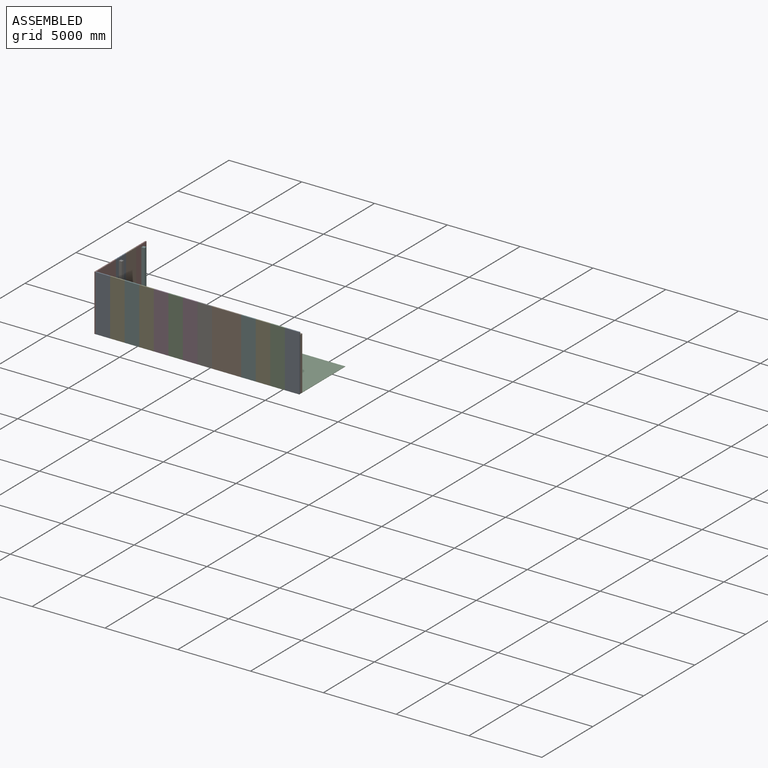
[diagram: assembled view]
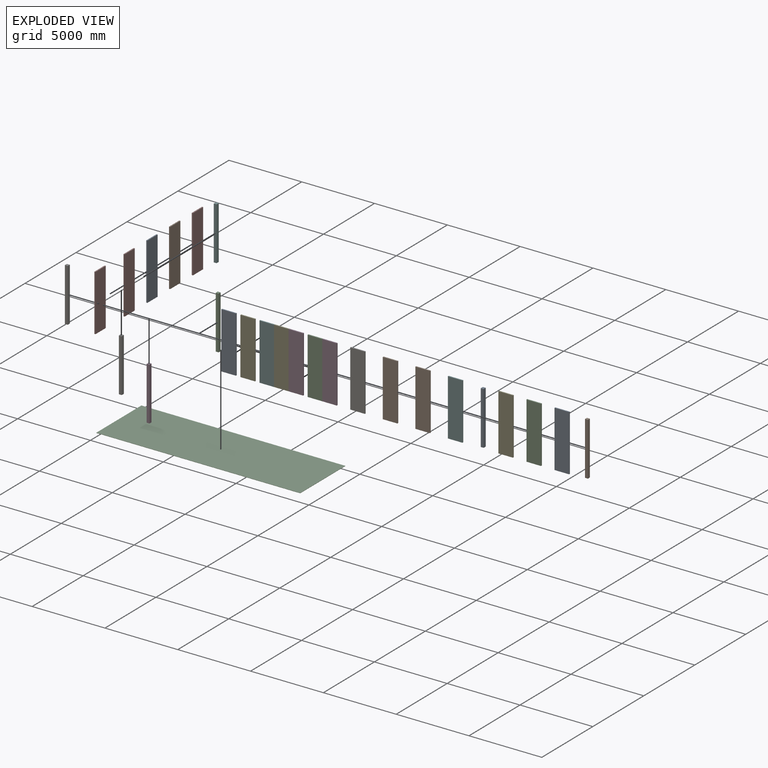
[diagram: exploded view]
GUIDED TOUR — MATED ASSEMBLY (Onshape document d45c94b71378123cd7f21959, AutoMate assembly d45c94b71378123cd7f21959_85c573c8442b2849ce9667aa_89269720afdbc6c4d7e54da6_default)

This assembly has 27 components, labeled P0..P26 below (a component is one placed occurrence of a part; the same part can appear more than once), held together by 9 mates. A mate is a constraint between two components; its type names the relative motion it leaves free:
  PLANAR — leaves sliding in the plane through the listed point (normal = the listed direction) and rotation about that normal free.
Axis/direction vectors are unit vectors and 'through' points are millimeter coordinates, both in the assembly's world frame.

MATES
  1. PLANAR "Eben 5": P10 <-> P9, direction (1.000, 0.000, 0.000) through (14000.00, -2210.00, 10.00) mm
  2. PLANAR "Eben 2": P6 <-> P16, direction (-1.000, 0.000, 0.000) through (0.00, -4320.00, 1845.00) mm
  3. PLANAR "Eben 9": P23 <-> P16, direction (0.000, -1.000, 0.000) through (-40.00, -4500.00, 1920.00) mm
  4. PLANAR "Eben 7": P6 <-> P23, direction (-1.000, 0.000, 0.000) through (0.00, -4420.00, 3670.00) mm
  5. PLANAR "Eben 3": P10 <-> P9, direction (0.000, 0.000, 1.000) through (7000.00, -2210.00, 20.00) mm
  6. PLANAR "Eben 6": P16 <-> P6, direction (0.000, 1.000, 0.000) through (500.00, -4420.00, 1920.00) mm
  7. PLANAR "Eben 10": P23 <-> P16, direction (0.000, 0.000, -1.000) through (-40.00, -4000.00, -10.00) mm
  8. PLANAR "Eben 8": P16 <-> P10, direction (0.000, 0.000, -1.000) through (500.00, -4460.00, -10.00) mm
  9. PLANAR "Eben 4": P9 <-> P10, direction (0.000, -1.000, 0.000) through (13900.00, -4420.00, 1845.00) mm

ASSEMBLY ORDER
  1. P23 — the base component [order verified]
  2. P15 [order verified]
  3. P8 [order verified]
  4. P14 [order verified]
  5. P6 [order verified]
  6. P12 [order verified]
  7. P13 [order verified]
  8. P4 [order verified]
  9. P11 [order verified]
  10. P25 [order verified]
  11. P7 [order verified]
  12. P21 [order verified]
  13. P16 [order verified]
  14. P3 [order verified]
  15. P26 [order verified]
  16. P19 [order verified]
  17. P22 [order verified]
  18. P17 [order verified]
  19. P1 [order verified]
  20. P5 [order verified]
  21. P0 [order verified]
  22. P18 [order verified]
  23. P20 [order verified]
  24. P2 [order verified]
  25. P24 [order verified]
  26. P9 [order verified]
  27. P10 [order verified]
Order-tag legend:
  [order verified] — this step's position reverses a verified removal order: the component was checked to insert without passing through the ones already placed.

Of the 27 components, 27 carry the full construction recipe — the FeatureScript program that regenerates the part's solid from scratch; the rest are supplied as boundary geometry only.
Because this assembly has more than 12 components, the tour below covers the 12 most significant ones individually (every recipe-attached component first, then the largest by part volume), in assembly order; the remaining 15 are summarized together in a grouped section at the end.
Each toured component is shown spotlighted twice — in the assembled view, then in the exploded view, where a leader line traces a displaced component back to its assembled socket (saturated green if recipe-attached, orange if geometry-only; every other component desaturated gray) — followed by its recipe or geometry summary and the mates that hold it.
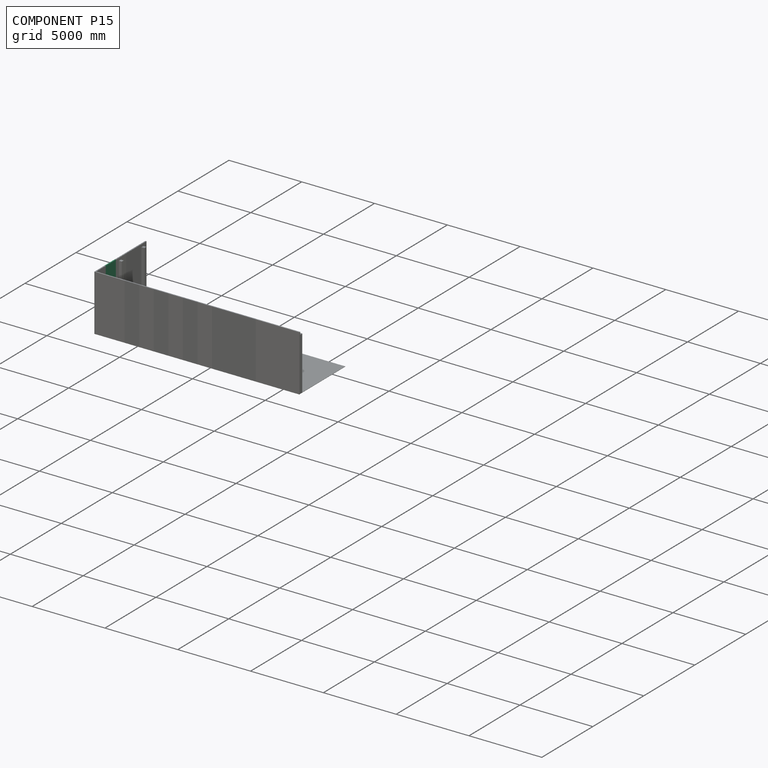
[diagram: component P15 — assembled]
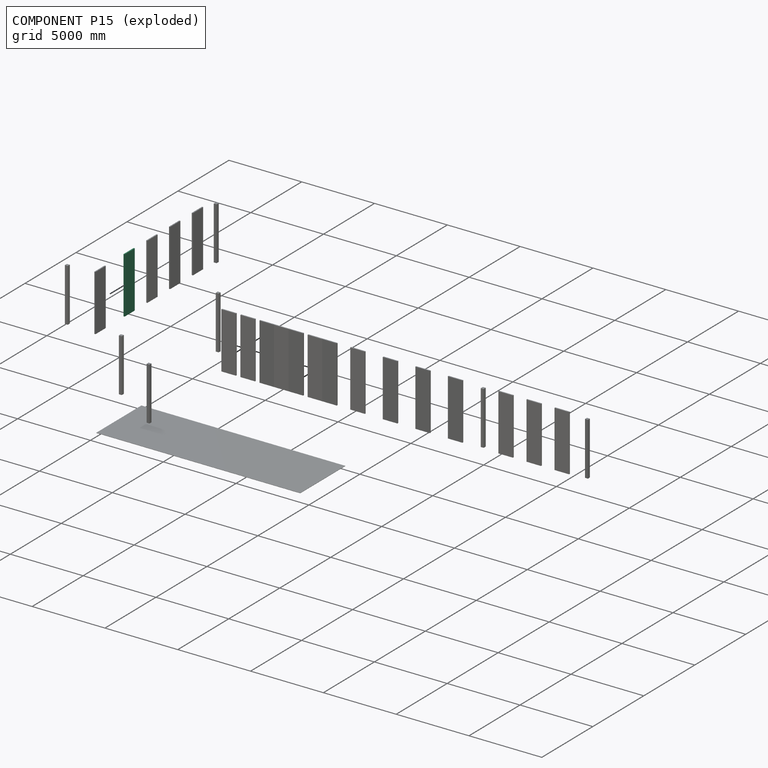
[diagram: component P15 — exploded]
COMPONENT P15 — same part as P1 (CADFS 00437528); its construction recipe is shown at P1.
Held by: no mates (free).
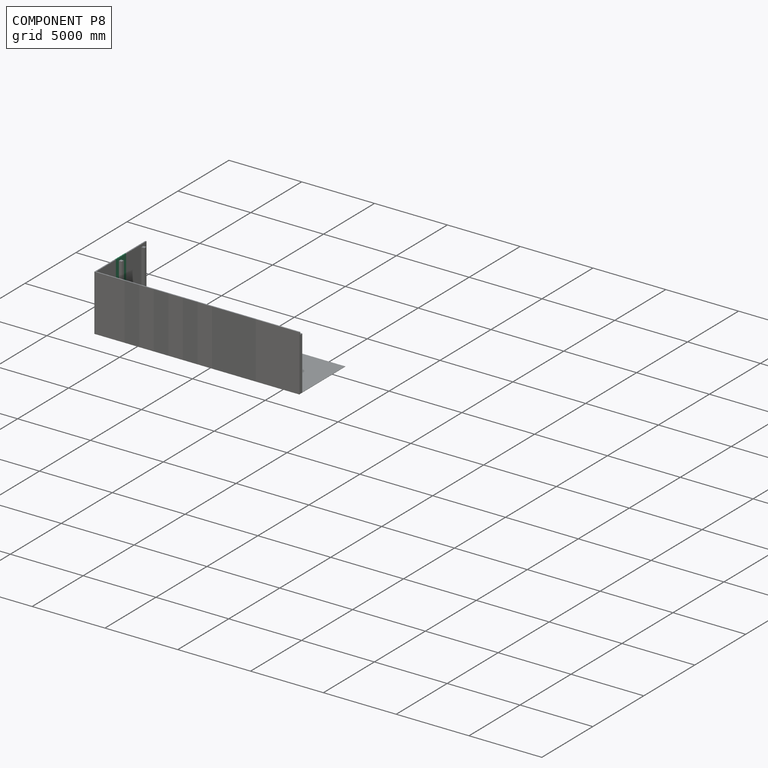
[diagram: component P8 — assembled]
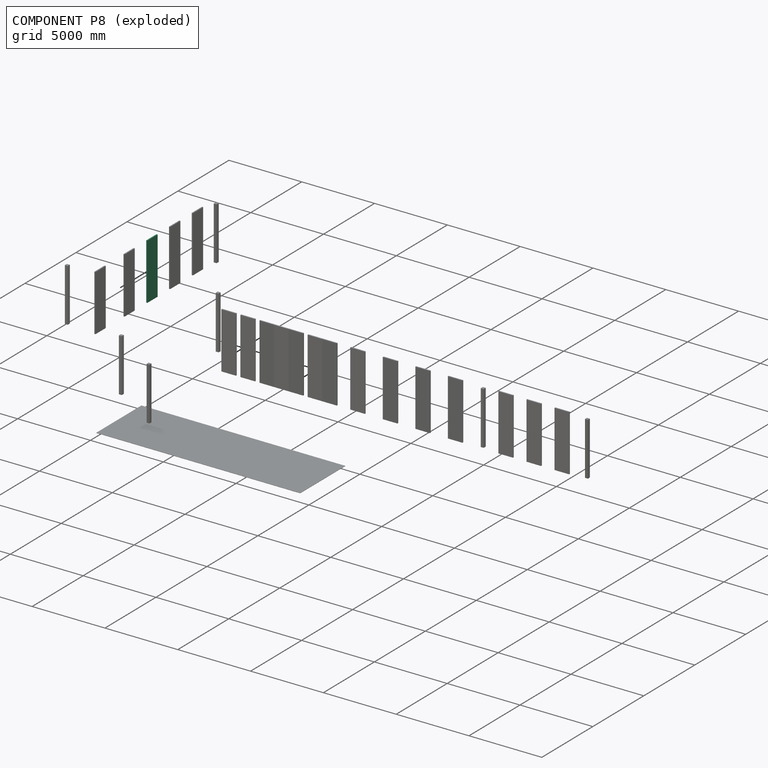
[diagram: component P8 — exploded]
COMPONENT P8 — same part as P1 (CADFS 00437528); its construction recipe is shown at P1.
Held by: no mates (free).
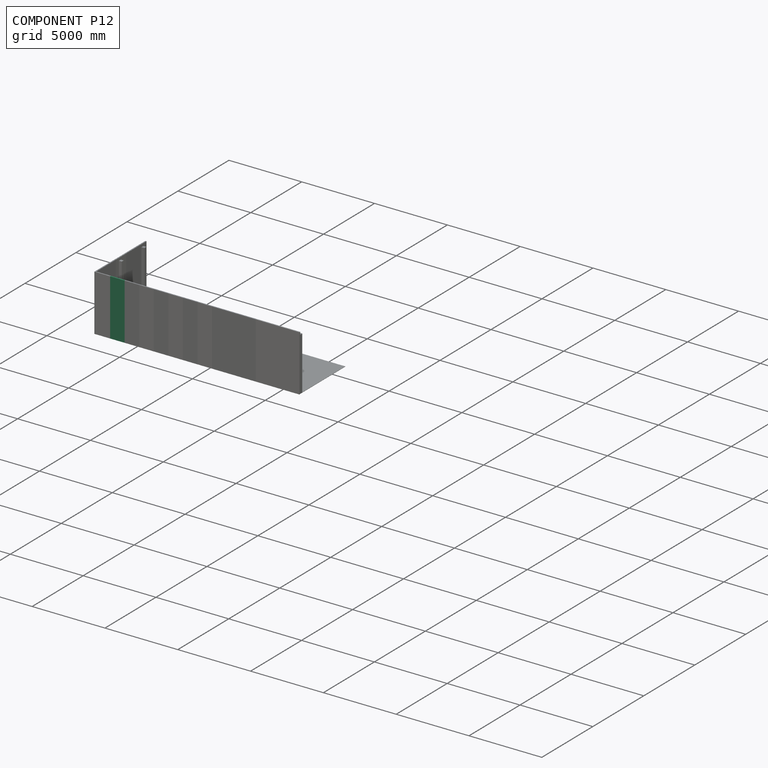
[diagram: component P12 — assembled]
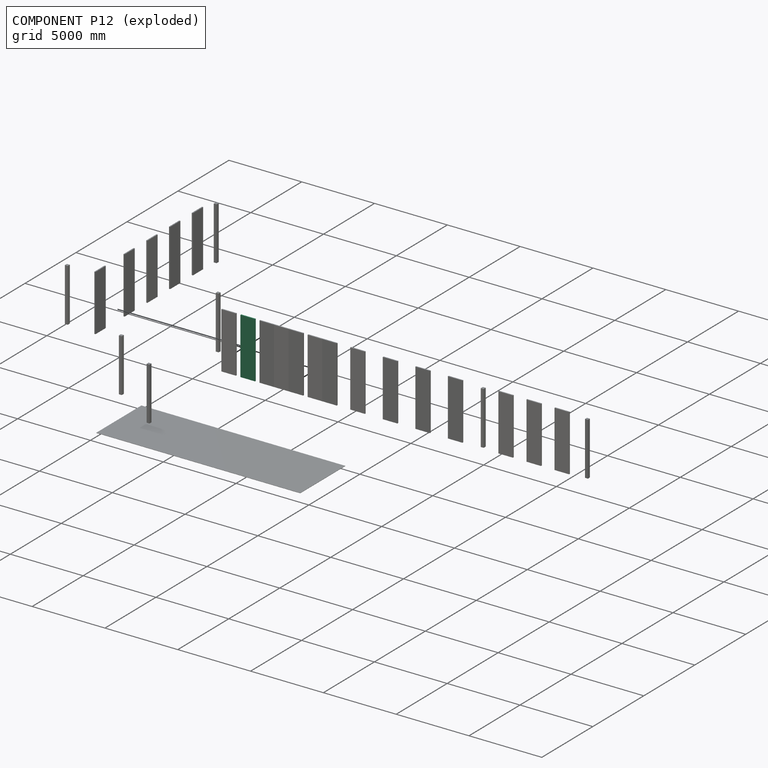
[diagram: component P12 — exploded]
COMPONENT P12 — same part as P1 (CADFS 00437528); its construction recipe is shown at P1.
Held by: no mates (free).
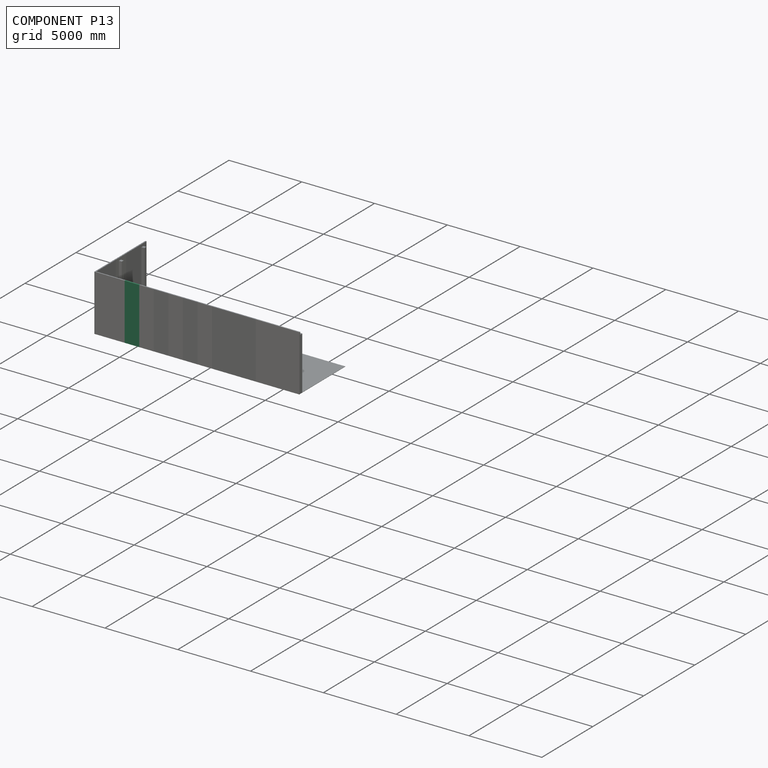
[diagram: component P13 — assembled]
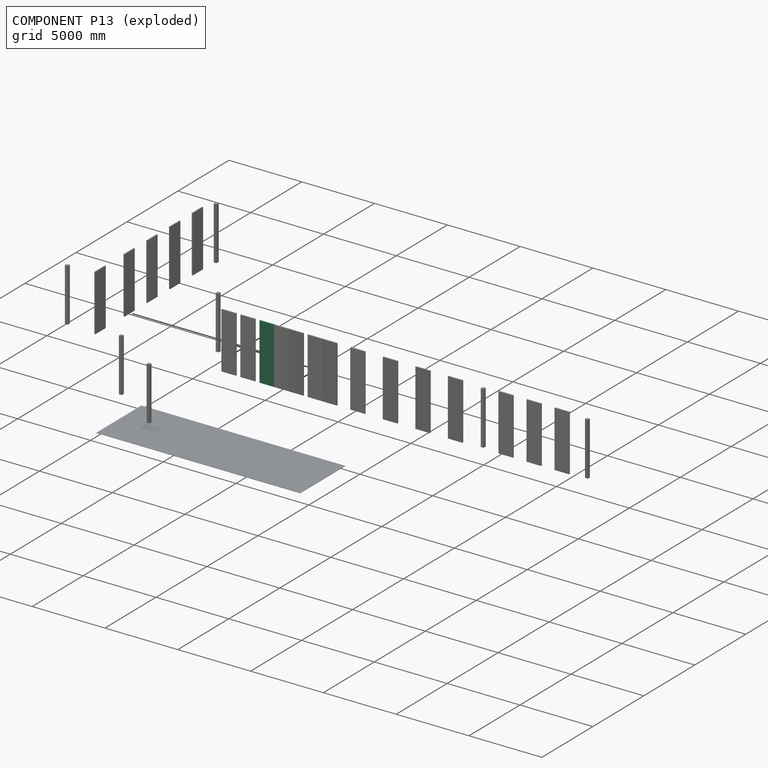
[diagram: component P13 — exploded]
COMPONENT P13 — same part as P1 (CADFS 00437528); its construction recipe is shown at P1.
Held by: no mates (free).
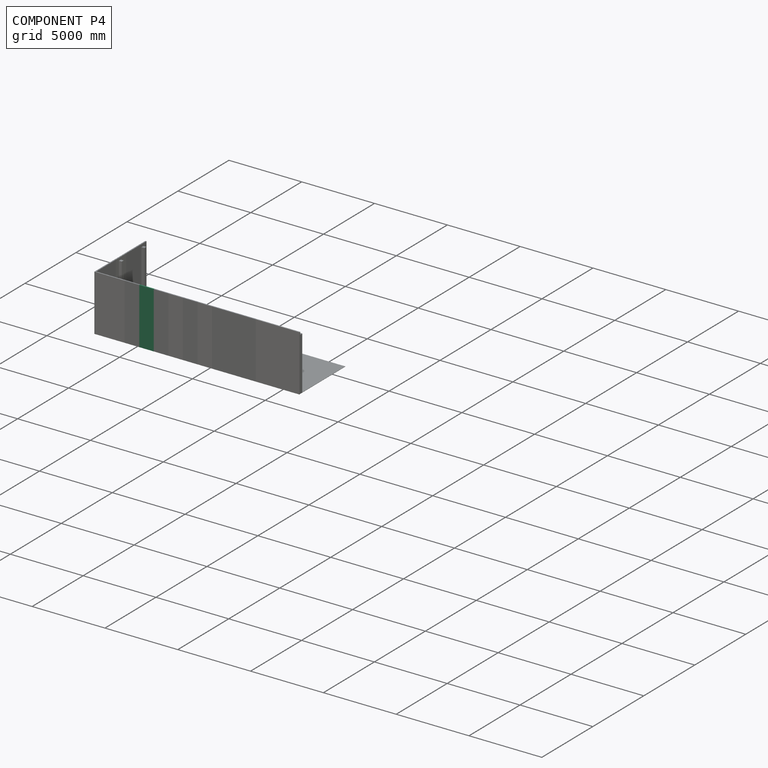
[diagram: component P4 — assembled]
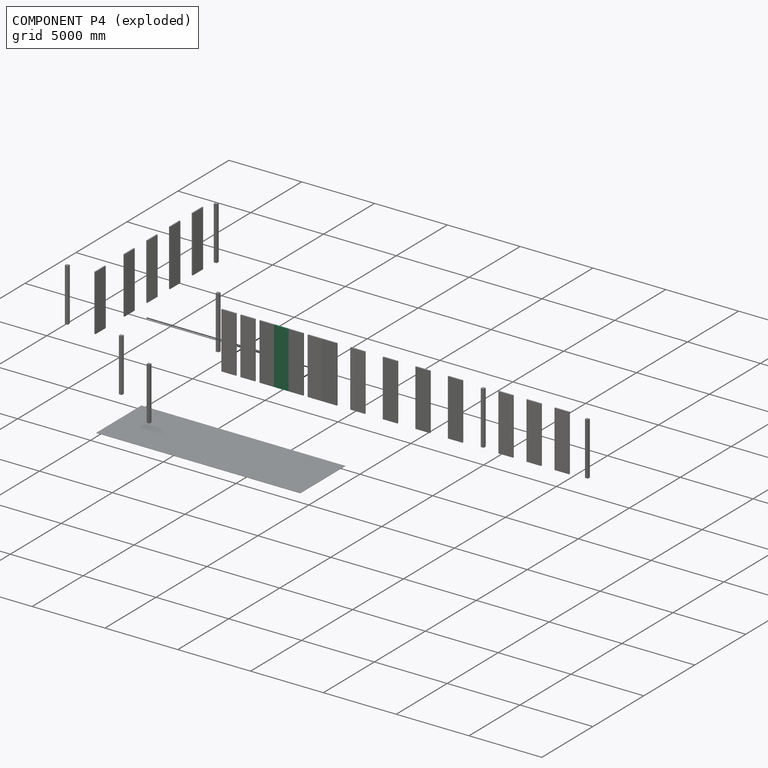
[diagram: component P4 — exploded]
COMPONENT P4 — same part as P1 (CADFS 00437528); its construction recipe is shown at P1.
Held by: no mates (free).
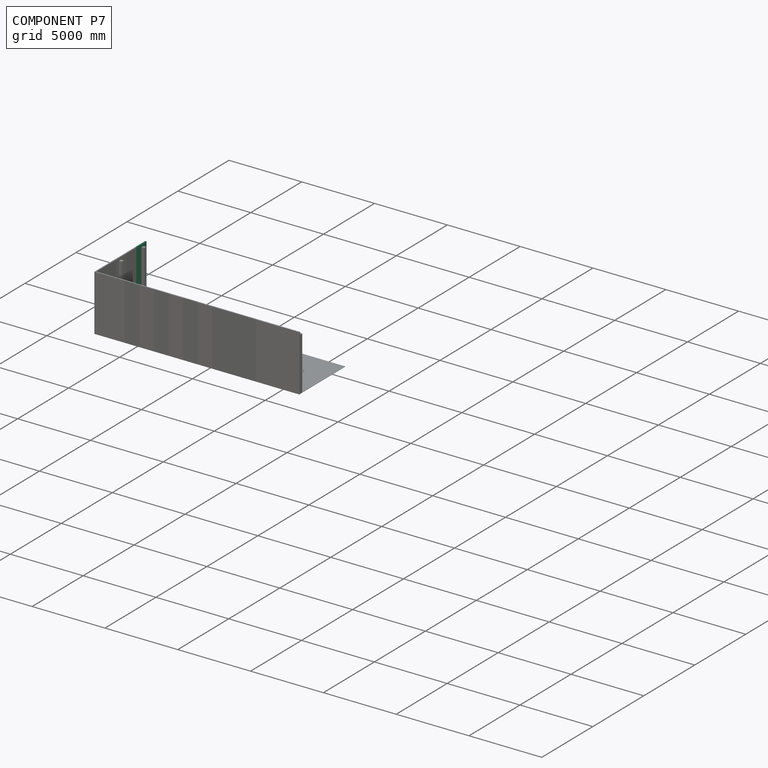
[diagram: component P7 — assembled]
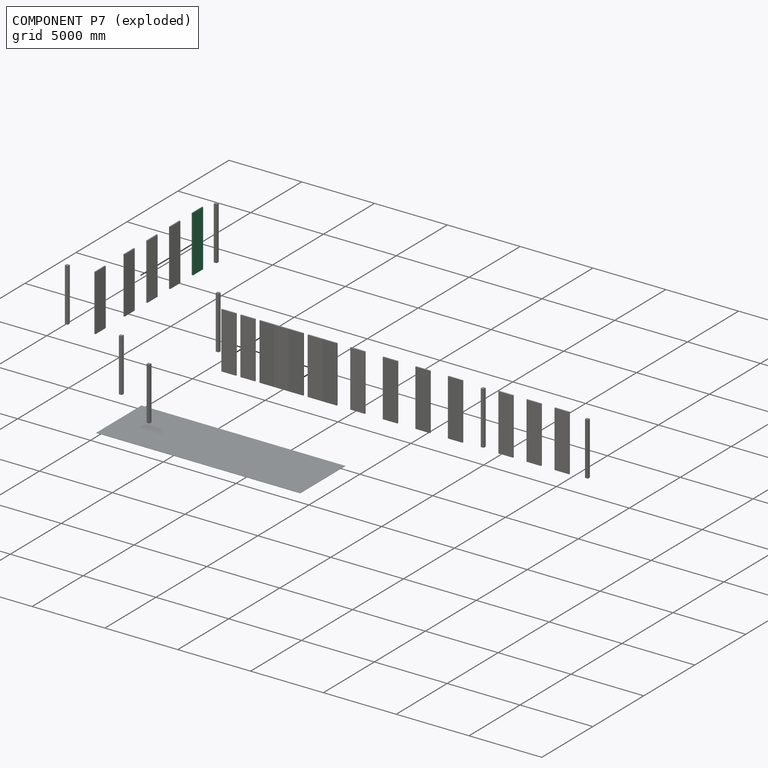
[diagram: component P7 — exploded]
COMPONENT P7 — same part as P1 (CADFS 00437528); its construction recipe is shown at P1.
Held by: no mates (free).
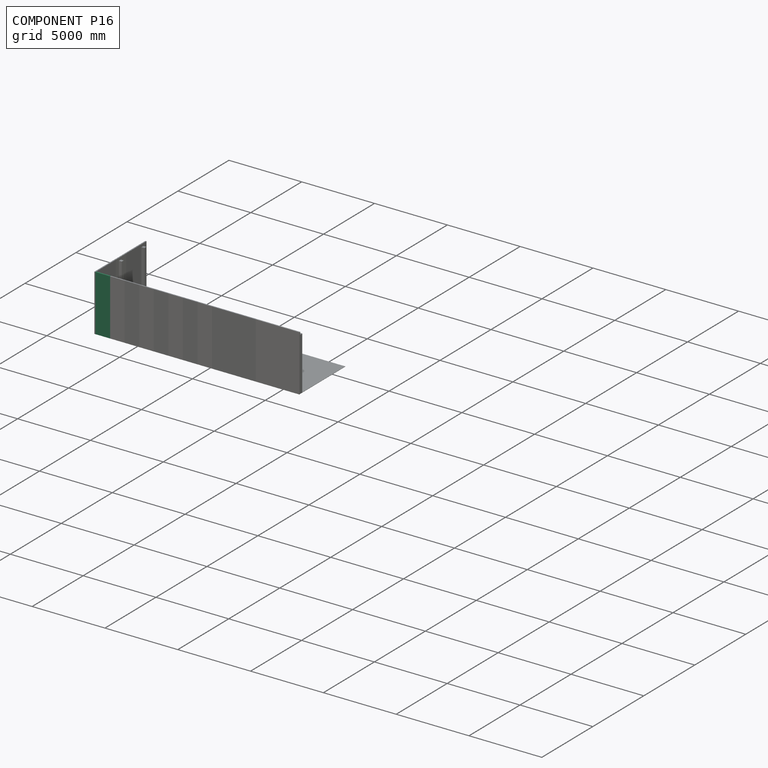
[diagram: component P16 — assembled]
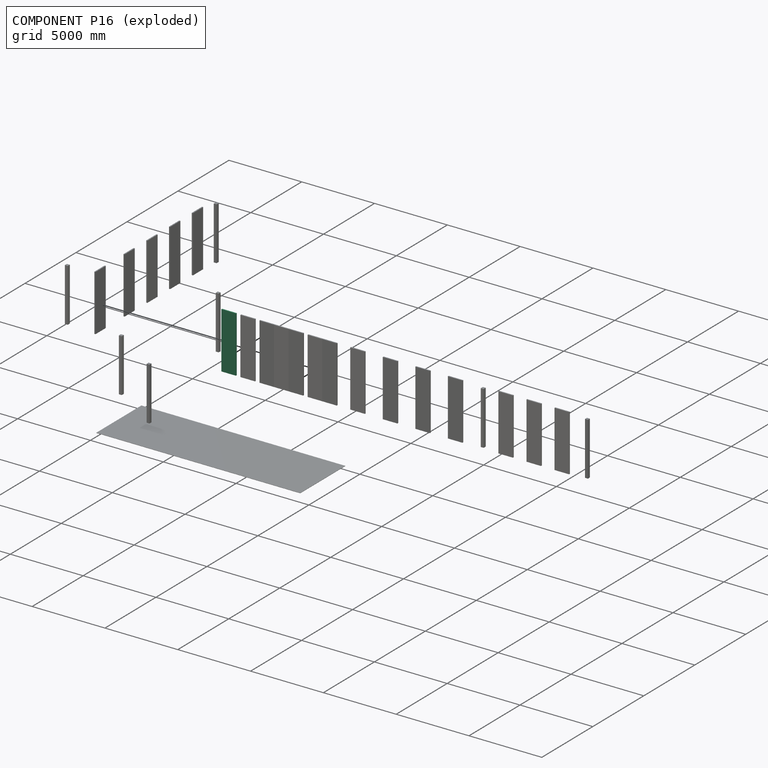
[diagram: component P16 — exploded]
COMPONENT P16 — same part as P1 (CADFS 00437528); its construction recipe is shown at P1.
Held by: PLANAR mate "Eben 2" to P6; PLANAR mate "Eben 9" to P23; PLANAR mate "Eben 6" to P6; PLANAR mate "Eben 10" to P23; PLANAR mate "Eben 8" to P10.
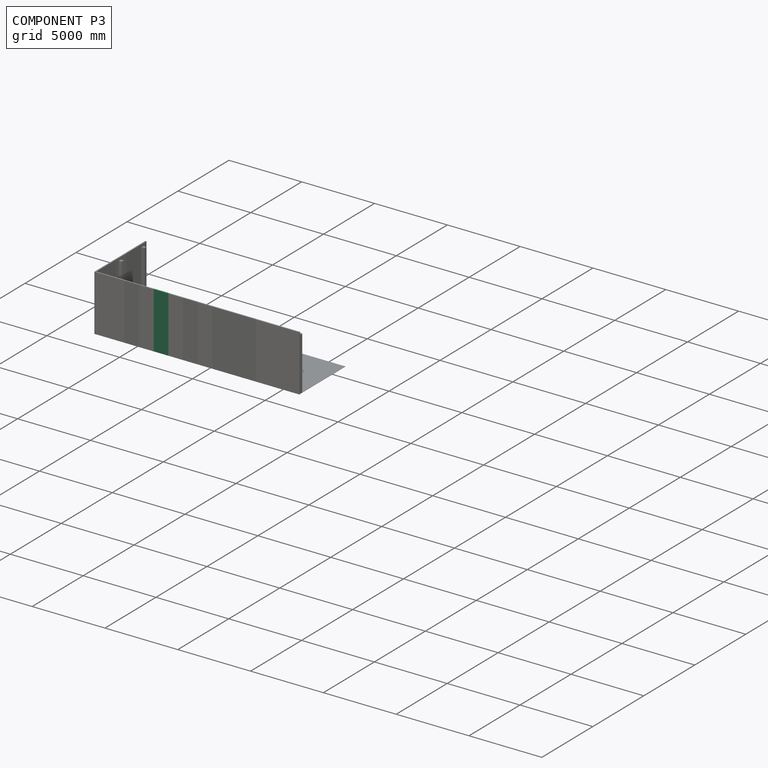
[diagram: component P3 — assembled]
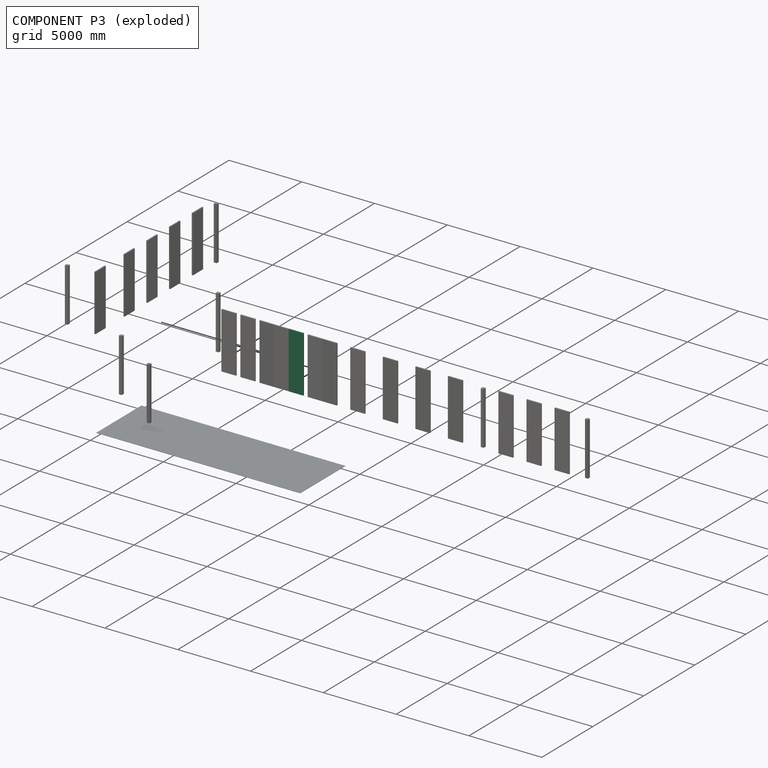
[diagram: component P3 — exploded]
COMPONENT P3 — same part as P1 (CADFS 00437528); its construction recipe is shown at P1.
Held by: no mates (free).
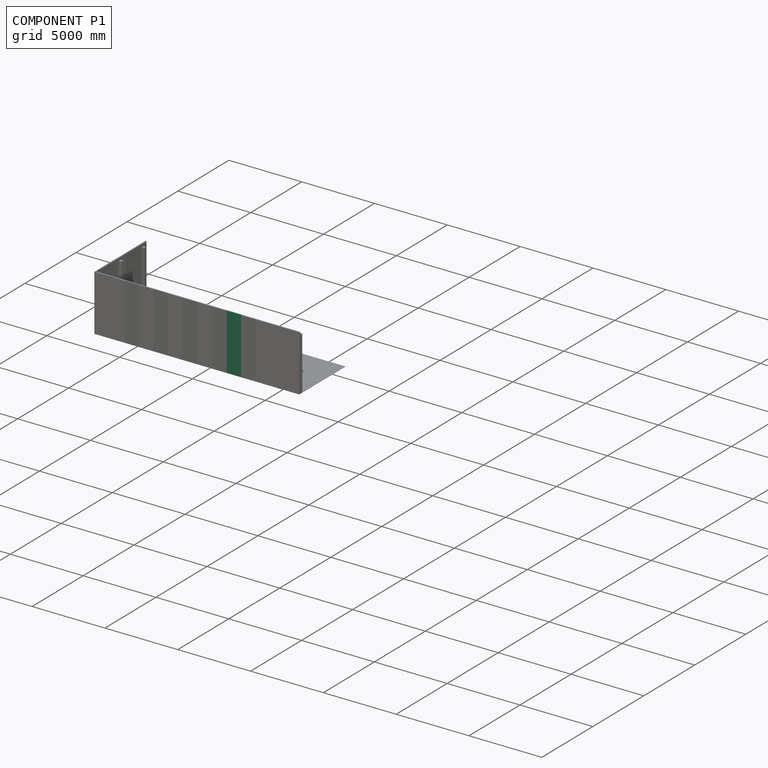
[diagram: component P1 — assembled]
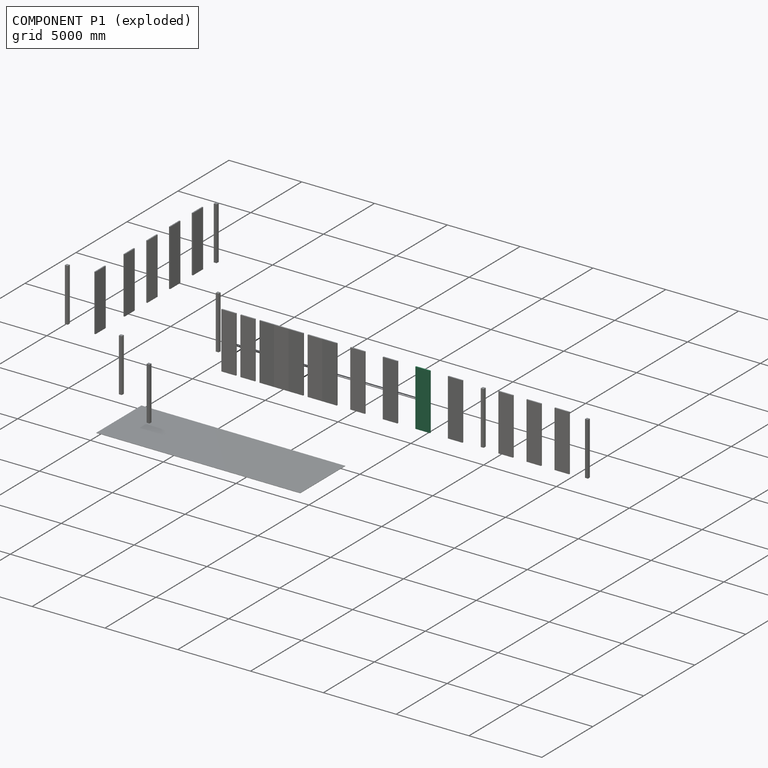
[diagram: component P1 — exploded]
COMPONENT P1 — recipe-attached (CADFS 00437528, mesh-verified: the recipe's output STEP matches this component's geometry to below the mesh-comparison resolution (tessellation chordal tolerance ~5.98 mm)).
Held by: no mates (free).
Construction recipe (FeatureScript — the CAD program that rebuilds this solid; sketch coordinates are in the units given by the * unit suffixes, e.g. mm):

FeatureScript 1511;
import(path : "onshape/std/geometry.fs", version : "1511.0");
import(path : "onshape/std/common.fs", version : "1511.0");
const mm = millimeter;
const VERTEX = EntityType.VERTEX;
const EDGE = EntityType.EDGE;
const FACE = EntityType.FACE;
const BODY = EntityType.BODY;
function v(x, y){return vector(x, y);}
function OD(order){return orderDisambiguation(order);}
function OSD(set){return originalSetDisambiguation(set);}
function TD(topology){return topologyDisambiguation(topology);}
function TDD(query){return trueDependencyDisambiguation(query);}
function sQuery(a, b, c) {return sketchEntityQuery(a, b, c);}

annotation { "Feature Type Name" : "Feature", "Feature Type Description" : "" }
export const myFeature = defineFeature(function(context is Context, id is Id, definition is map)
    precondition{}
    {
        {
            var Q0;
            Q0=qCreatedBy(makeId("Front.planeOp"),FACE);
            var sketch = newSketch(context, id + "F0", { "sketchPlane" : qUnion([Q0])});
            skLineSegment(sketch, "E0.bottom", {"start": v(-500, 1930) * mm, "end": v(500, 1930) * mm});
            skLineSegment(sketch, "E0.top", {"start": v(-500, -1930) * mm, "end": v(500, -1930) * mm});
            skLineSegment(sketch, "E0.left", {"start": v(-500, 1930) * mm, "end": v(-500, -1930) * mm});
            skLineSegment(sketch, "E0.right", {"start": v(500, 1930) * mm, "end": v(500, -1930) * mm});
            skPoint(sketch, "E0.middle", {"position": v(0, 0) * mm});
            skSolve(sketch);
        }
        {
            var Q0;
            Q0=makeQuery(id+"F0.imprint","IMPRINT",FACE,{"disambiguationData":[TD([[makeQuery(id+"F0.imprint","IMPRINT",EDGE,{"derivedFrom":sQuery(id+"F0.wireOp",EDGE,"E0.bottom")}),-1.0]])]});
            extrude(context, id + "F1", {"entities" : qUnion([Q0]), "depth" : 80 * mm});
        }
    });
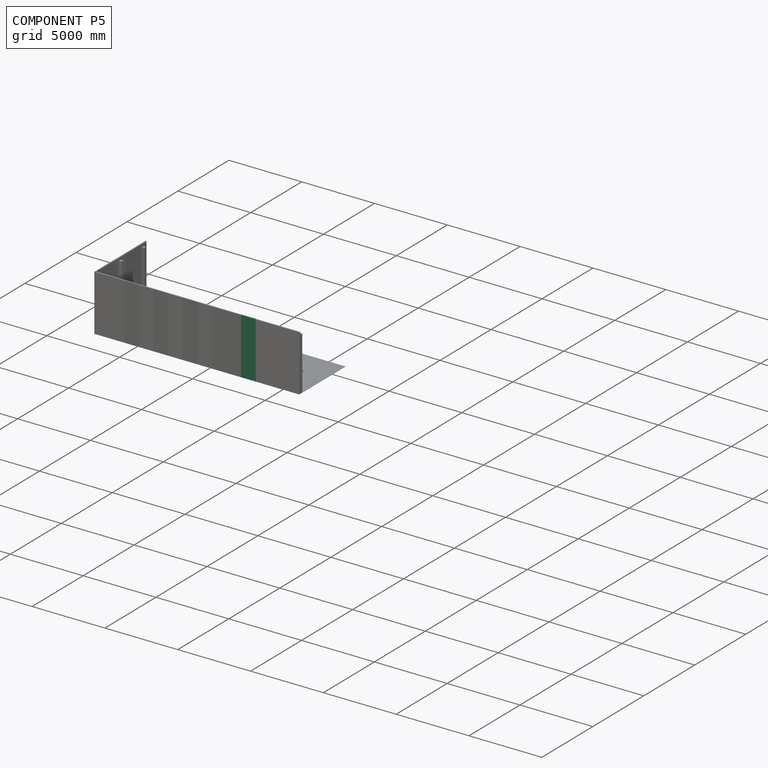
[diagram: component P5 — assembled]
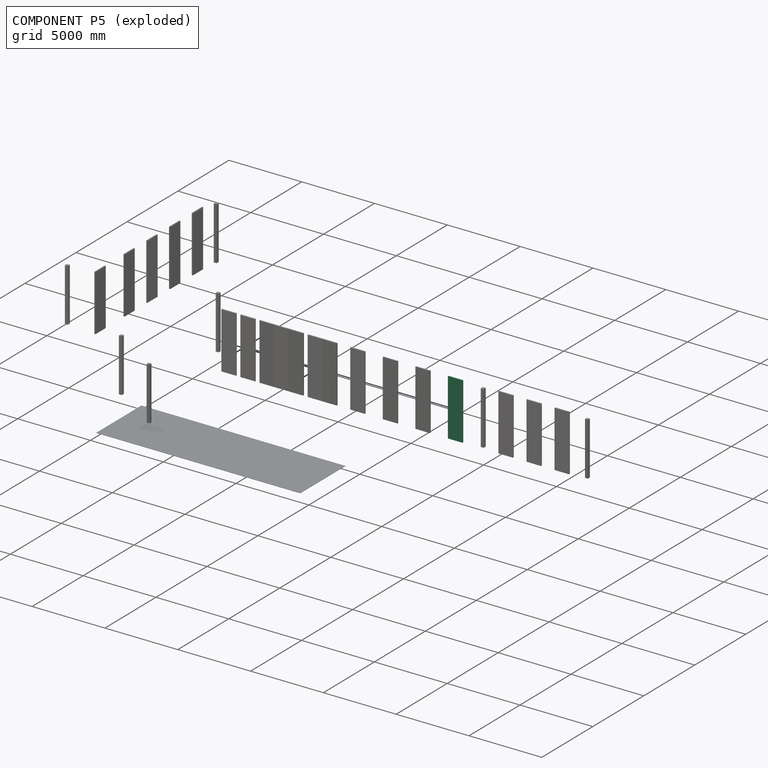
[diagram: component P5 — exploded]
COMPONENT P5 — same part as P1 (CADFS 00437528); its construction recipe is shown at P1.
Held by: no mates (free).
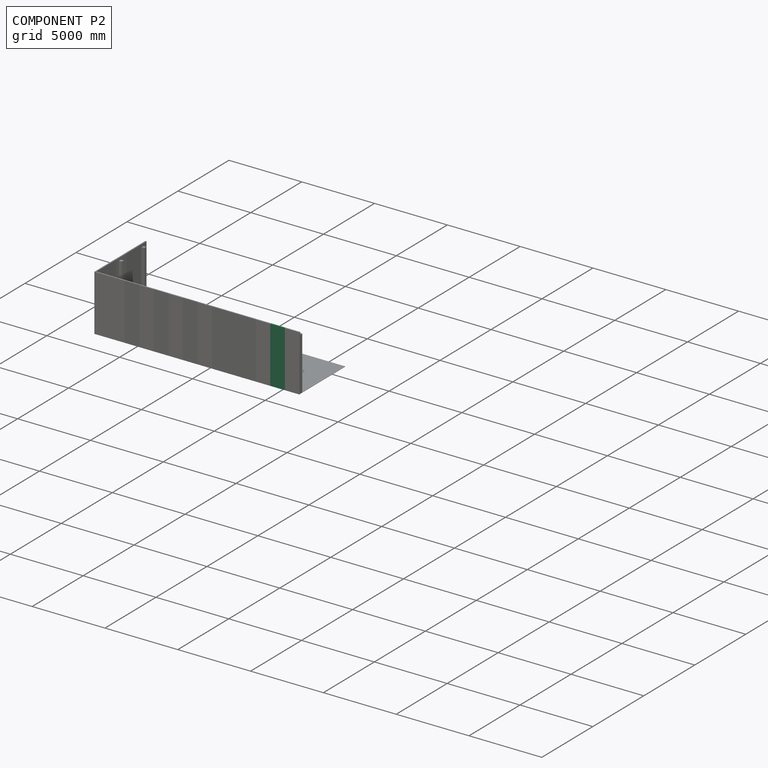
[diagram: component P2 — assembled]
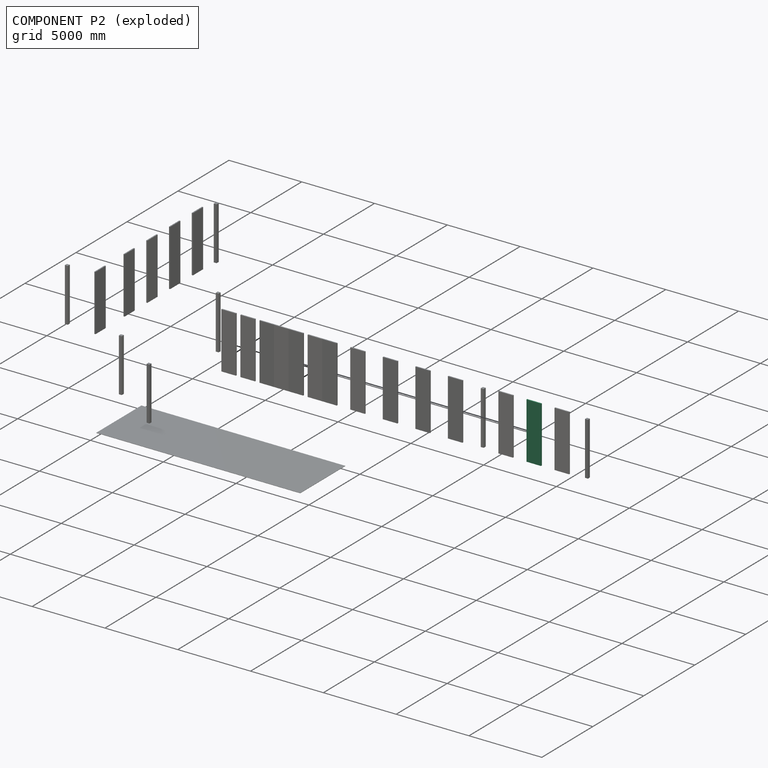
[diagram: component P2 — exploded]
COMPONENT P2 — same part as P1 (CADFS 00437528); its construction recipe is shown at P1.
Held by: no mates (free).
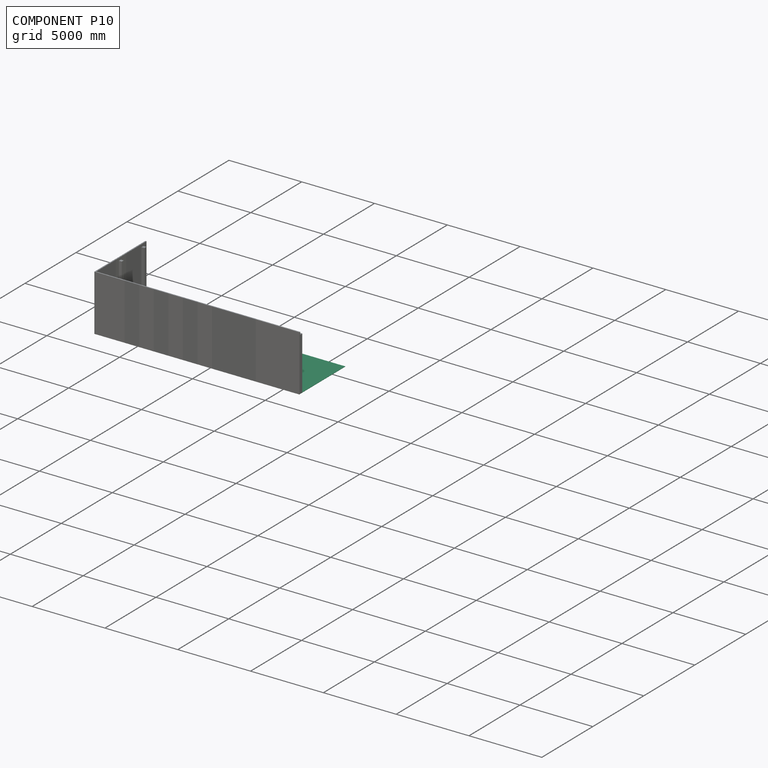
[diagram: component P10 — assembled]
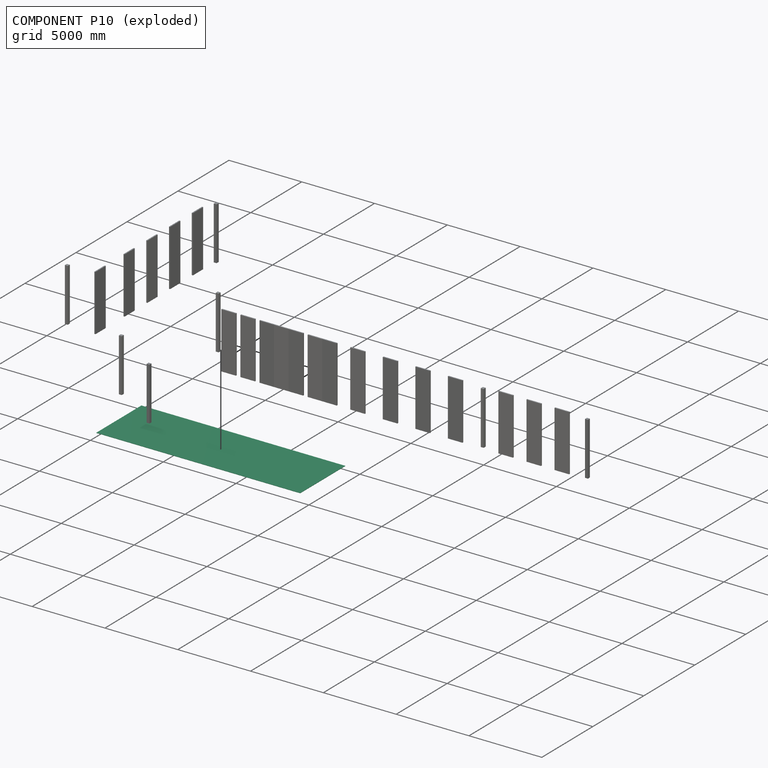
[diagram: component P10 — exploded]
COMPONENT P10 — recipe-attached (CADFS 00437529, mesh-verified: the recipe's output STEP matches this component's geometry to below the mesh-comparison resolution (tessellation chordal tolerance ~22 mm)).
Held by: PLANAR mate "Eben 5" to P9; PLANAR mate "Eben 3" to P9; PLANAR mate "Eben 8" to P16; PLANAR mate "Eben 4" to P9.
Construction recipe (FeatureScript — the CAD program that rebuilds this solid; sketch coordinates are in the units given by the * unit suffixes, e.g. mm):

FeatureScript 1511;
import(path : "onshape/std/geometry.fs", version : "1511.0");
import(path : "onshape/std/common.fs", version : "1511.0");
const mm = millimeter;
const VERTEX = EntityType.VERTEX;
const EDGE = EntityType.EDGE;
const FACE = EntityType.FACE;
const BODY = EntityType.BODY;
function v(x, y){return vector(x, y);}
function OD(order){return orderDisambiguation(order);}
function OSD(set){return originalSetDisambiguation(set);}
function TD(topology){return topologyDisambiguation(topology);}
function TDD(query){return trueDependencyDisambiguation(query);}
function sQuery(a, b, c) {return sketchEntityQuery(a, b, c);}

annotation { "Feature Type Name" : "Feature", "Feature Type Description" : "" }
export const myFeature = defineFeature(function(context is Context, id is Id, definition is map)
    precondition{}
    {
        {
            var Q0;
            Q0=qCreatedBy(makeId("Top.planeOp"),FACE);
            var sketch = newSketch(context, id + "F0", { "sketchPlane" : qUnion([Q0])});
            skLineSegment(sketch, "E0.bottom", {"start": v(-7000, 2210) * mm, "end": v(7000, 2210) * mm});
            skLineSegment(sketch, "E0.top", {"start": v(-7000, -2210) * mm, "end": v(7000, -2210) * mm});
            skLineSegment(sketch, "E0.left", {"start": v(-7000, 2210) * mm, "end": v(-7000, -2210) * mm});
            skLineSegment(sketch, "E0.right", {"start": v(7000, 2210) * mm, "end": v(7000, -2210) * mm});
            skPoint(sketch, "E0.middle", {"position": v(0, 0) * mm});
            skSolve(sketch);
        }
        {
            var Q0;
            Q0 = qSketchRegion(id + "F0", true);
            extrude(context, id + "F1", {"entities" : qUnion([Q0]), "depth" : 20 * mm});
        }
    });
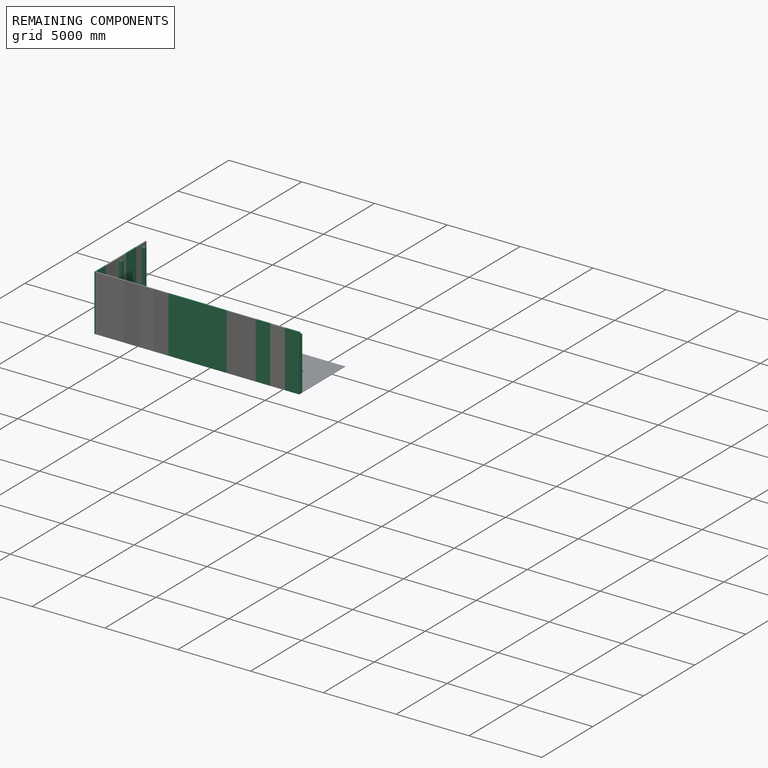
[diagram: remaining components — assembled]
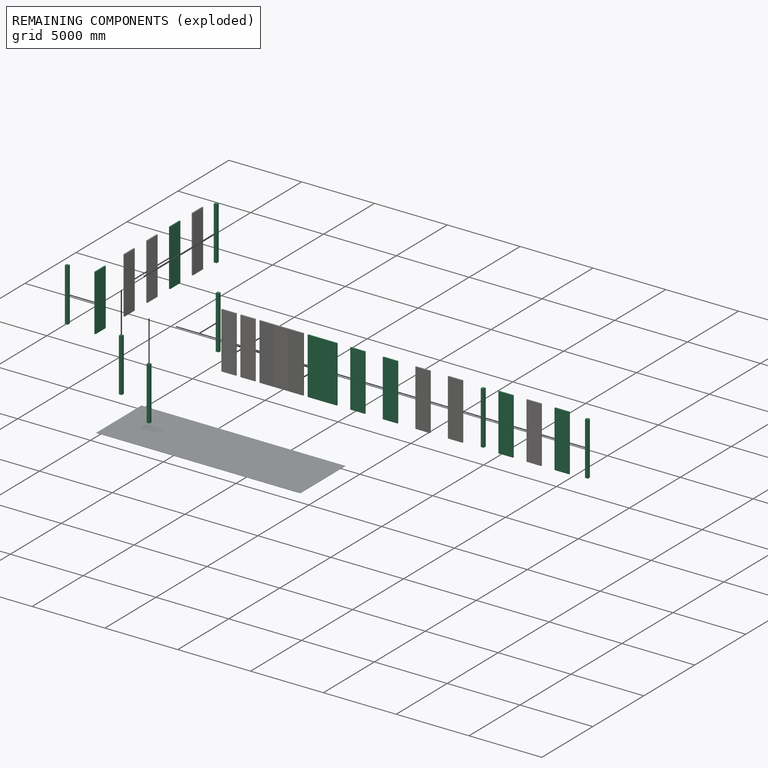
[diagram: remaining components — exploded]
REMAINING COMPONENTS (grouped) — the 15 components below fall outside the per-component tour by the significance rule stated above; both spotlight views highlight the whole group.
  P23: bounding box 3860.0 x 1000.0 x 80.0 mm, volume 308800000 mm^3. Recipe-attached (CADFS 00437528; recipe not printed under the significance rule). Held by: PLANAR mate "Eben 9" to P16; PLANAR mate "Eben 7" to P6; PLANAR mate "Eben 10" to P16.
  P14: bounding box 3650.0 x 200.0 x 200.0 mm, volume 146000000 mm^3. Recipe-attached (CADFS 00437530; recipe not printed under the significance rule). Held by: no mates (free).
  P6: bounding box 3650.0 x 200.0 x 200.0 mm, volume 146000000 mm^3. Recipe-attached (CADFS 00437530; recipe not printed under the significance rule). Held by: PLANAR mate "Eben 2" to P16; PLANAR mate "Eben 7" to P23; PLANAR mate "Eben 6" to P16.
  P11: bounding box 3650.0 x 200.0 x 200.0 mm, volume 146000000 mm^3. Recipe-attached (CADFS 00437530; recipe not printed under the significance rule). Held by: no mates (free).
  P25: bounding box 3860.0 x 1000.0 x 80.0 mm, volume 308800000 mm^3. Recipe-attached (CADFS 00437528; recipe not printed under the significance rule). Held by: no mates (free).
  P21: bounding box 3650.0 x 200.0 x 200.0 mm, volume 146000000 mm^3. Recipe-attached (CADFS 00437530; recipe not printed under the significance rule). Held by: no mates (free).
  P26: bounding box 3860.0 x 1000.0 x 80.0 mm, volume 308800000 mm^3. Recipe-attached (CADFS 00437528; recipe not printed under the significance rule). Held by: no mates (free).
  P19: bounding box 3860.0 x 1000.0 x 80.0 mm, volume 308800000 mm^3. Recipe-attached (CADFS 00437528; recipe not printed under the significance rule). Held by: no mates (free).
  P22: bounding box 3860.0 x 1000.0 x 80.0 mm, volume 308800000 mm^3. Recipe-attached (CADFS 00437528; recipe not printed under the significance rule). Held by: no mates (free).
  P17: bounding box 3860.0 x 1000.0 x 80.0 mm, volume 308800000 mm^3. Recipe-attached (CADFS 00437528; recipe not printed under the significance rule). Held by: no mates (free).
  P0: bounding box 3650.0 x 200.0 x 200.0 mm, volume 146000000 mm^3. Recipe-attached (CADFS 00437530; recipe not printed under the significance rule). Held by: no mates (free).
  P18: bounding box 3650.0 x 200.0 x 200.0 mm, volume 146000000 mm^3. Recipe-attached (CADFS 00437530; recipe not printed under the significance rule). Held by: no mates (free).
  P20: bounding box 3860.0 x 1000.0 x 80.0 mm, volume 308800000 mm^3. Recipe-attached (CADFS 00437528; recipe not printed under the significance rule). Held by: no mates (free).
  P24: bounding box 3860.0 x 1000.0 x 80.0 mm, volume 308800000 mm^3. Recipe-attached (CADFS 00437528; recipe not printed under the significance rule). Held by: no mates (free).
  P9: bounding box 3650.0 x 200.0 x 200.0 mm, volume 146000000 mm^3. Recipe-attached (CADFS 00437530; recipe not printed under the significance rule). Held by: PLANAR mate "Eben 5" to P10; PLANAR mate "Eben 3" to P10; PLANAR mate "Eben 4" to P10.
PROVENANCE & LICENSES
Assembly (occurrences, transforms, mates, per-part STEP geometry): AutoMate dataset, Zenodo record 7776208, CC0.
Construction recipes: CADFS (HuggingFace VladPyatov/CADFS, CC-BY-4.0, layered over the ABC dataset), FeatureScript reconstruction programs keyed by ABC model id.
Join: ABC meta listings map ABC model id -> Onshape documentId; within a shared document, parts are matched by geometric signature (bounding-box dims + volume at 0.1% relative tolerance, exact B-rep face/solid counts).
Verification: 27 of this assembly's 27 components carry a recipe attachment, and every attachment is mesh-verified: the CADFS STEP and the AutoMate member STEP were compared as meshes in their shared local frame (symmetric sampled-point-to-mesh distance); worst across the 27 attachments: below the mesh-comparison resolution (tessellation chordal tolerance ~22 mm) on a 14681 mm part.
Renders: orthographic iso camera (az 35 / el 25); the floor grid conveys scale (grid pitch printed in each image; no ruler). In the exploded view each component is displaced by its stored offset vector: the offsets alone carry the explosion direction (mate normal/axis signs are not orientation cues and do not encode it), and separation distances are assigned per mate-chain, not proportionally to assembly-order depth.
